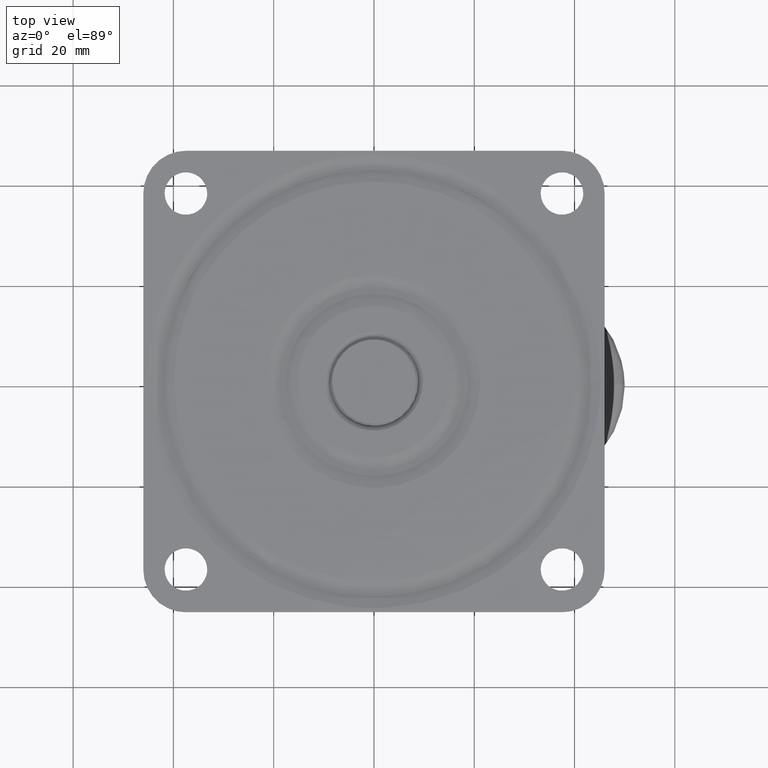
[diagram: clean part render]
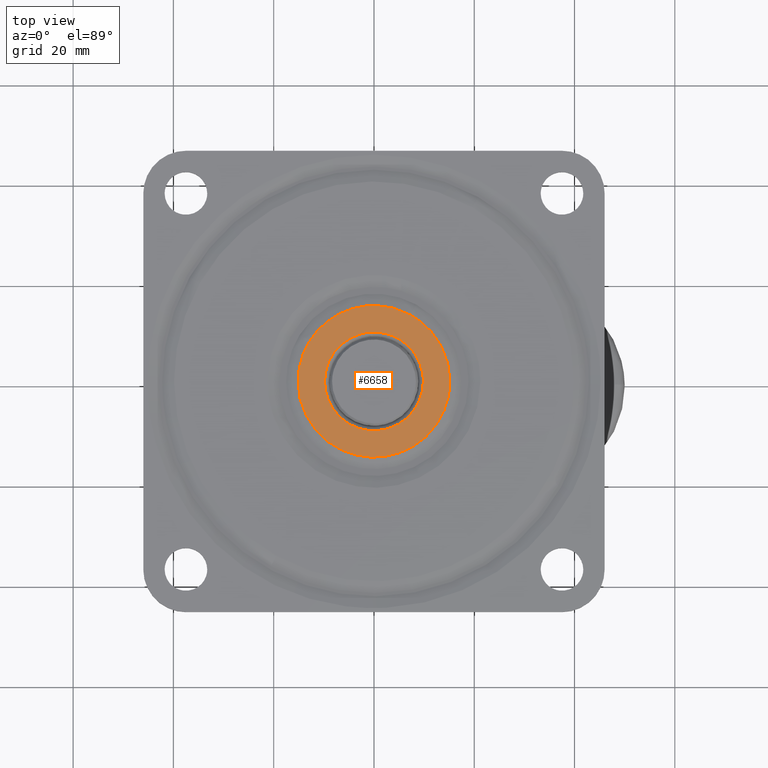
[diagram: same view with one face highlighted and labeled with its STEP entity id]
A machine part, top view. The second image highlights one B-rep face of the part: STEP entity #6658.
In plain terms, the highlighted face is a freeform B-spline surface patch.
Its self-contained STEP definition (entity closure, byte-faithful):
#4654=CARTESIAN_POINT('',(-9.849222287516859,-0.123775497394680,-1.728160E-016));
#4655=VERTEX_POINT('',#4654);
#4669=CARTESIAN_POINT('',(9.850000000000000,0.0,0.0));
#4670=VERTEX_POINT('',#4669);
#4671=CARTESIAN_POINT('',(9.850000000000000,0.0,0.0));
#4672=CARTESIAN_POINT('',(9.850000000000000,-9.850000000000000,0.0));
#4673=CARTESIAN_POINT('',(0.0,-9.850000000000000,0.0));
#4674=CARTESIAN_POINT('',(-9.726992500665535,-9.849999999999998,0.0));
#4675=CARTESIAN_POINT('',(-9.849222287516859,-0.123775497394680,-1.728160E-016));
#4683=(BOUNDED_CURVE()B_SPLINE_CURVE(2,(#4671,#4672,#4673,#4674,#4675),.UNSPECIFIED.,.F.,.U.)B_SPLINE_CURVE_WITH_KNOTS((3,2,3),(0.500000000000000,0.750000000000000,0.997784295760437),.UNSPECIFIED.)CURVE()GEOMETRIC_REPRESENTATION_ITEM()RATIONAL_B_SPLINE_CURVE((1.0,0.707106781186547,1.0,0.709702640173204,0.994854295272783))REPRESENTATION_ITEM(''));
#4684=EDGE_CURVE('',#4670,#4655,#4683,.T.);
#4686=CARTESIAN_POINT('',(-0.686872528272805,9.826021880202951,-2.410811E-016));
#4687=VERTEX_POINT('',#4686);
#4688=CARTESIAN_POINT('',(-0.686872528272805,9.826021880202951,-2.410811E-016));
#4689=CARTESIAN_POINT('',(-0.343854792117776,9.850000000000000,0.0));
#4690=CARTESIAN_POINT('',(0.0,9.850000000000000,0.0));
#4691=CARTESIAN_POINT('',(9.850000000000000,9.850000000000000,0.0));
#4692=CARTESIAN_POINT('',(9.850000000000000,0.0,0.0));
#4700=(BOUNDED_CURVE()B_SPLINE_CURVE(2,(#4688,#4689,#4690,#4691,#4692),.UNSPECIFIED.,.F.,.U.)B_SPLINE_CURVE_WITH_KNOTS((3,2,3),(0.237833686508911,0.250000000000000,0.500000000000000),.UNSPECIFIED.)CURVE()GEOMETRIC_REPRESENTATION_ITEM()RATIONAL_B_SPLINE_CURVE((0.972879876331602,0.985746277122006,1.0,0.707106781186547,1.0))REPRESENTATION_ITEM(''));
#4701=EDGE_CURVE('',#4687,#4670,#4700,.T.);
#4738=CARTESIAN_POINT('',(-9.850000000000000,0.0,0.0));
#4739=VERTEX_POINT('',#4738);
#4740=CARTESIAN_POINT('',(-9.850000000000000,0.0,0.0));
#4741=CARTESIAN_POINT('',(-9.850000000000000,9.185487944172202,0.0));
#4742=CARTESIAN_POINT('',(-0.686872528272805,9.826021880202951,-2.410811E-016));
#4750=(BOUNDED_CURVE()B_SPLINE_CURVE(2,(#4740,#4741,#4742),.UNSPECIFIED.,.F.,.U.)B_SPLINE_CURVE_WITH_KNOTS((3,3),(0.0,0.237833686508911),.UNSPECIFIED.)CURVE()GEOMETRIC_REPRESENTATION_ITEM()RATIONAL_B_SPLINE_CURVE((1.0,0.721360504064542,0.972879876331602))REPRESENTATION_ITEM(''));
#4751=EDGE_CURVE('',#4739,#4687,#4750,.T.);
#4753=CARTESIAN_POINT('',(-9.849222287516859,-0.123775497394680,-1.728160E-016));
#4754=CARTESIAN_POINT('',(-9.850000000000001,-0.061890194237086,0.0));
#4755=CARTESIAN_POINT('',(-9.850000000000000,0.0,0.0));
#4763=(BOUNDED_CURVE()B_SPLINE_CURVE(2,(#4753,#4754,#4755),.UNSPECIFIED.,.F.,.U.)B_SPLINE_CURVE_WITH_KNOTS((3,3),(0.997784295760438,1.0),.UNSPECIFIED.)CURVE()GEOMETRIC_REPRESENTATION_ITEM()RATIONAL_B_SPLINE_CURVE((0.994854295272784,0.997404141013344,1.0))REPRESENTATION_ITEM(''));
#4764=EDGE_CURVE('',#4655,#4739,#4763,.T.);
#5020=CARTESIAN_POINT('',(-12.815822350656759,8.032702092100802,-8.459083E-016));
#5021=VERTEX_POINT('',#5020);
#5022=CARTESIAN_POINT('',(-15.125131582592401,0.0,0.0));
#5023=VERTEX_POINT('',#5022);
#5024=CARTESIAN_POINT('',(-12.815822350656758,8.032702092100802,-8.459083E-016));
#5025=CARTESIAN_POINT('',(-15.125131582592395,4.348300934725588,0.0));
#5026=CARTESIAN_POINT('',(-15.125131582592401,0.0,0.0));
#5034=(BOUNDED_CURVE()B_SPLINE_CURVE(2,(#5024,#5025,#5026),.UNSPECIFIED.,.F.,.U.)B_SPLINE_CURVE_WITH_KNOTS((3,3),(0.909173271049719,1.0),.UNSPECIFIED.)CURVE()GEOMETRIC_REPRESENTATION_ITEM()RATIONAL_B_SPLINE_CURVE((0.864498809751421,0.893589868013821,1.0))REPRESENTATION_ITEM(''));
#5035=EDGE_CURVE('',#5021,#5023,#5034,.T.);
#5099=CARTESIAN_POINT('',(7.286587711628322,13.254253842869341,-8.268803E-016));
#5100=VERTEX_POINT('',#5099);
#5114=CARTESIAN_POINT('',(15.125131582592401,0.0,0.0));
#5115=VERTEX_POINT('',#5114);
#5116=CARTESIAN_POINT('',(15.125131582592401,0.0,0.0));
#5117=CARTESIAN_POINT('',(15.125131582592401,8.944977882447756,0.0));
#5118=CARTESIAN_POINT('',(7.286587711628322,13.254253842869346,-8.268803E-016));
#5126=(BOUNDED_CURVE()B_SPLINE_CURVE(2,(#5116,#5117,#5118),.UNSPECIFIED.,.F.,.U.)B_SPLINE_CURVE_WITH_KNOTS((3,3),(0.500000000000000,0.667949183893719),.UNSPECIFIED.)CURVE()GEOMETRIC_REPRESENTATION_ITEM()RATIONAL_B_SPLINE_CURVE((1.0,0.803235291729105,0.870842360843670))REPRESENTATION_ITEM(''));
#5127=EDGE_CURVE('',#5115,#5100,#5126,.T.);
#5129=CARTESIAN_POINT('',(-15.125131582592401,0.0,0.0));
#5130=CARTESIAN_POINT('',(-15.125131582592397,-15.125131582592397,0.0));
#5131=CARTESIAN_POINT('',(0.0,-15.125131582592401,0.0));
#5132=CARTESIAN_POINT('',(15.125131582592397,-15.125131582592397,0.0));
#5133=CARTESIAN_POINT('',(15.125131582592401,0.0,0.0));
#5141=(BOUNDED_CURVE()B_SPLINE_CURVE(2,(#5129,#5130,#5131,#5132,#5133),.UNSPECIFIED.,.F.,.U.)B_SPLINE_CURVE_WITH_KNOTS((3,2,3),(0.0,0.250000000000000,0.500000000000000),.UNSPECIFIED.)CURVE()GEOMETRIC_REPRESENTATION_ITEM()RATIONAL_B_SPLINE_CURVE((1.0,0.707106781186547,1.0,0.707106781186547,1.0))REPRESENTATION_ITEM(''));
#5142=EDGE_CURVE('',#5023,#5115,#5141,.T.);
#5164=CARTESIAN_POINT('',(7.286587711628322,13.254253842869344,-8.268803E-016));
#5165=CARTESIAN_POINT('',(3.883473735385371,15.125131582592404,0.0));
#5166=CARTESIAN_POINT('',(0.0,15.125131582592401,0.0));
#5167=CARTESIAN_POINT('',(-8.370428862366282,15.125131582592401,0.0));
#5168=CARTESIAN_POINT('',(-12.815822350656765,8.032702092100802,-8.459083E-016));
#5176=(BOUNDED_CURVE()B_SPLINE_CURVE(2,(#5164,#5165,#5166,#5167,#5168),.UNSPECIFIED.,.F.,.U.)B_SPLINE_CURVE_WITH_KNOTS((3,2,3),(0.667949183893718,0.750000000000000,0.909173271049720),.UNSPECIFIED.)CURVE()GEOMETRIC_REPRESENTATION_ITEM()RATIONAL_B_SPLINE_CURVE((0.870842360843669,0.903871489457441,1.0,0.813516913172726,0.864498809751421))REPRESENTATION_ITEM(''));
#5177=EDGE_CURVE('',#5100,#5021,#5176,.T.);
#6641=CARTESIAN_POINT('',(-16.636132169062499,16.636104357859111,0.0));
#6642=CARTESIAN_POINT('',(16.636132980437790,16.636104357859111,0.0));
#6643=CARTESIAN_POINT('',(-16.636132169062499,-16.636131657217408,0.0));
#6644=CARTESIAN_POINT('',(16.636132980437790,-16.636131657217408,0.0));
#6645=B_SPLINE_SURFACE_WITH_KNOTS('',1,1,((#6641,#6643),(#6642,#6644)),.UNSPECIFIED.,.F.,.F.,.U.,(2,2),(2,2),(0.0,33.272265149500292),(0.0,33.272236015076523),.UNSPECIFIED.);
#6646=ORIENTED_EDGE('',*,*,#5142,.T.);
#6647=ORIENTED_EDGE('',*,*,#5127,.T.);
#6648=ORIENTED_EDGE('',*,*,#5177,.T.);
#6649=ORIENTED_EDGE('',*,*,#5035,.T.);
#6650=EDGE_LOOP('',(#6646,#6647,#6648,#6649));
#6651=FACE_OUTER_BOUND('',#6650,.T.);
#6652=ORIENTED_EDGE('',*,*,#4684,.T.);
#6653=ORIENTED_EDGE('',*,*,#4764,.T.);
#6654=ORIENTED_EDGE('',*,*,#4751,.T.);
#6655=ORIENTED_EDGE('',*,*,#4701,.T.);
#6656=EDGE_LOOP('',(#6652,#6653,#6654,#6655));
#6657=FACE_BOUND('',#6656,.T.);
#6658=ADVANCED_FACE('',(#6651,#6657),#6645,.F.);